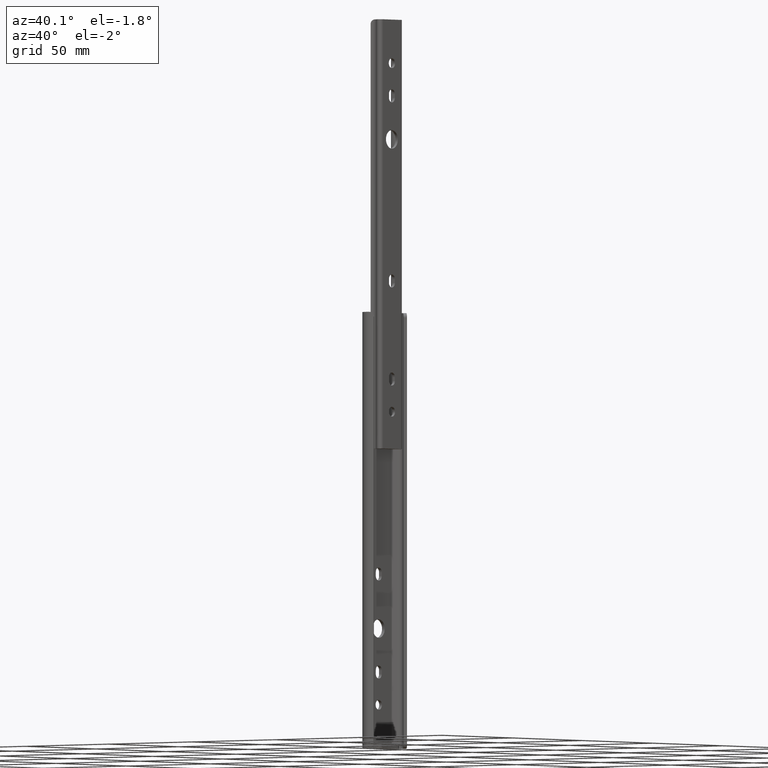
[diagram: clean part render]
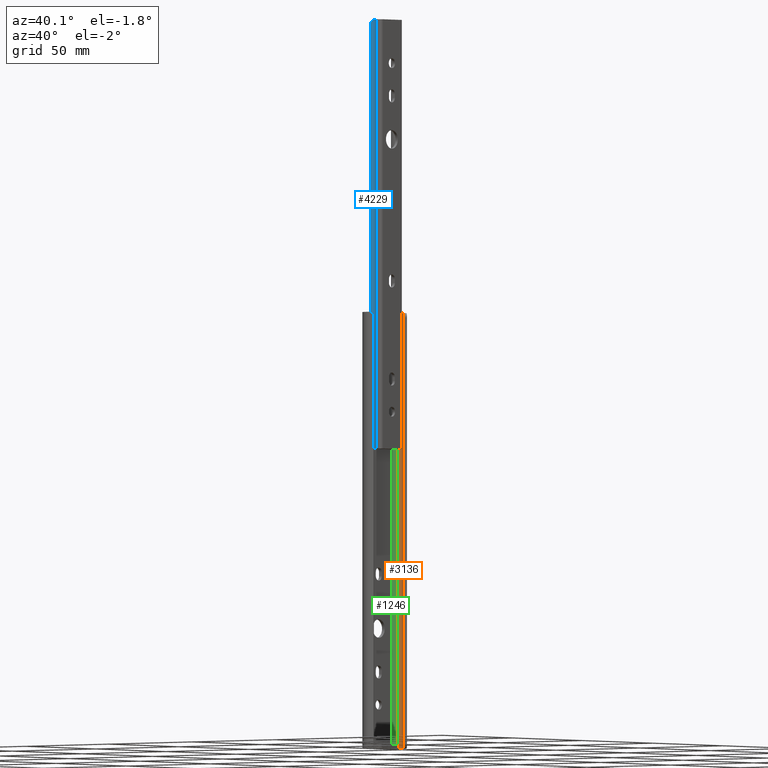
[diagram: same view with three faces highlighted in distinct colors, each labeled with its STEP entity id]
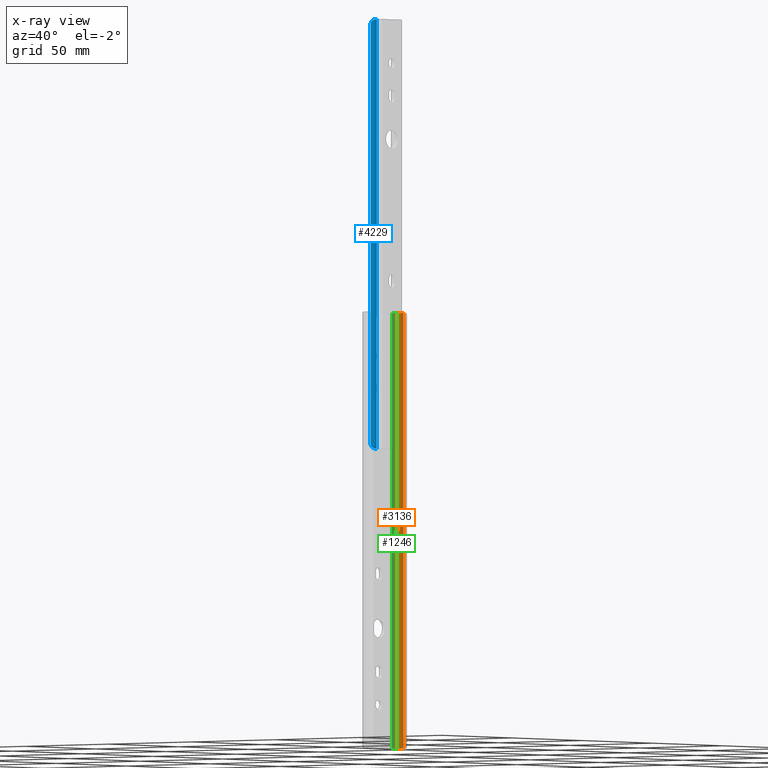
[diagram: x-ray of the same camera — body ghosted, the three highlighted faces saturated]
A machine part, auxiliary view with three faces highlighted in distinct colors.
The next image is the same camera in x-ray (body ghosted, the three faces saturated) — at least one of them is partly hidden behind the body in this view.
Their STEP definitions:

[orange] entity #3136 — the highlighted cylindrical surface (edge-blend (fillet) strip) has radius 2.38 mm, axis along (0, 0, 1).
#44 = CARTESIAN_POINT ( 'NONE',  ( 6.159554565290845218, 11.70952232855952957, 7.955333440612388785E-15 ) ) ;
#193 = CARTESIAN_POINT ( 'NONE',  ( 6.707828172244846954, 11.37344130486771654, -199.8263817872062020 ) ) ;
#339 = EDGE_CURVE ( 'NONE', #1954, #3659, #2154, .T. ) ;
#613 = ORIENTED_EDGE ( 'NONE', *, *, #3125, .T. ) ;
#697 = DIRECTION ( 'NONE',  ( 0.0000000000000000000, 0.0000000000000000000, 1.000000000000000000 ) ) ;
#735 = CARTESIAN_POINT ( 'NONE',  ( 6.914928520186535366, 11.17268289087915001, -0.3475630137417690113 ) ) ;
#944 = CIRCLE ( 'NONE', #3711, 2.380000000000003446 ) ;
#1015 = EDGE_CURVE ( 'NONE', #3629, #2826, #4083, .T. ) ;
#1031 = DIRECTION ( 'NONE',  ( -0.0000000000000000000, -0.0000000000000000000, -1.000000000000000000 ) ) ;
#1059 = LINE ( 'NONE', #2379, #3586 ) ;
#1108 = CARTESIAN_POINT ( 'NONE',  ( 6.974319507503963678, 11.10625038543432019, -199.5845069564100243 ) ) ;
#1134 = CARTESIAN_POINT ( 'NONE',  ( 5.946482975542397575, 11.77990335351425699, 0.0000000000000000000 ) ) ;
#1170 = CARTESIAN_POINT ( 'NONE',  ( 6.155113324817515164, 11.70268304060862263, -199.9919058725087950 ) ) ;
#1253 = EDGE_CURVE ( 'NONE', #2319, #3251, #1315, .T. ) ;
#1315 = B_SPLINE_CURVE_WITH_KNOTS ( 'NONE', 3,
 ( #2310, #735, #1327, #3633, #1978, #2067, #44, #3310 ),
 .UNSPECIFIED., .F., .F.,
 ( 4, 2, 2, 4 ),
 ( 0.0000000000000000000, 0.0003319397122535875516, 0.0006638794245071751032, 0.001327758849014350206 ),
 .UNSPECIFIED. ) ;
#1327 = CARTESIAN_POINT ( 'NONE',  ( 6.849112363084719490, 11.23882743567644127, -0.2876317299449960285 ) ) ;
#1350 = EDGE_CURVE ( 'NONE', #2826, #3251, #944, .T. ) ;
#1470 = CARTESIAN_POINT ( 'NONE',  ( 6.446040085907243089, 11.55048805000502909, -199.9316191511569514 ) ) ;
#1556 = CARTESIAN_POINT ( 'NONE',  ( 5.946482975542397575, 11.77990335351425699, -200.0000000000000000 ) ) ;
#1608 = CARTESIAN_POINT ( 'NONE',  ( 3.358592419840845889, 11.02785215579391043, 0.0000000000000000000 ) ) ;
#1635 = DIRECTION ( 'NONE',  ( -0.0000000000000000000, -0.0000000000000000000, -1.000000000000000000 ) ) ;
#1660 = CARTESIAN_POINT ( 'NONE',  ( 5.199999999999961098, 9.519999999999924967, -200.0000000000000000 ) ) ;
#1954 = VERTEX_POINT ( 'NONE', #1556 ) ;
#1978 = CARTESIAN_POINT ( 'NONE',  ( 6.621050867037928889, 11.43209788005492378, -0.1387759915512314923 ) ) ;
#2022 = DIRECTION ( 'NONE',  ( 1.000000000000000000, 0.0000000000000000000, 0.0000000000000000000 ) ) ;
#2067 = CARTESIAN_POINT ( 'NONE',  ( 6.359231725189411044, 11.60925759201545659, -0.03340115593023917917 ) ) ;
#2121 = ORIENTED_EDGE ( 'NONE', *, *, #1253, .T. ) ;
#2154 = B_SPLINE_CURVE_WITH_KNOTS ( 'NONE', 3,
 ( #3209, #4119, #1170, #3495, #1470, #193, #2804, #3541 ),
 .UNSPECIFIED., .F., .F.,
 ( 4, 2, 2, 4 ),
 ( 0.0000000000000000000, 0.0003315858646309653669, 0.0006631717292619307338, 0.001326343458523886838 ),
 .UNSPECIFIED. ) ;
#2310 = CARTESIAN_POINT ( 'NONE',  ( 6.974319507503963678, 11.10625038543432019, -0.4154930435900439645 ) ) ;
#2319 = VERTEX_POINT ( 'NONE', #2566 ) ;
#2379 = CARTESIAN_POINT ( 'NONE',  ( 6.974319507503963678, 11.10625038543432019, -200.0000000000000000 ) ) ;
#2476 = CIRCLE ( 'NONE', #3305, 2.380000000000003446 ) ;
#2566 = CARTESIAN_POINT ( 'NONE',  ( 6.974319507503963678, 11.10625038543432019, -0.4154930435900439645 ) ) ;
#2651 = CARTESIAN_POINT ( 'NONE',  ( 5.199999999999961098, 9.519999999999924967, -200.0000000000000000 ) ) ;
#2745 = AXIS2_PLACEMENT_3D ( 'NONE', #2651, #697, #4288 ) ;
#2762 = DIRECTION ( 'NONE',  ( 0.0000000000000000000, 0.0000000000000000000, 1.000000000000000000 ) ) ;
#2790 = VECTOR ( 'NONE', #2762, 1000.000000000000000 ) ;
#2804 = CARTESIAN_POINT ( 'NONE',  ( 6.855510967504663711, 11.23914511133290439, -199.7203974009524643 ) ) ;
#2826 = VERTEX_POINT ( 'NONE', #1608 ) ;
#2874 = ORIENTED_EDGE ( 'NONE', *, *, #2976, .T. ) ;
#2930 = ORIENTED_EDGE ( 'NONE', *, *, #1350, .F. ) ;
#2976 = EDGE_CURVE ( 'NONE', #3659, #2319, #1059, .T. ) ;
#2977 = CARTESIAN_POINT ( 'NONE',  ( 3.358592419840845889, 11.02785215579391043, -200.0000000000000000 ) ) ;
#3119 = ORIENTED_EDGE ( 'NONE', *, *, #1015, .F. ) ;
#3125 = EDGE_CURVE ( 'NONE', #3629, #1954, #2476, .T. ) ;
#3136 = ADVANCED_FACE ( 'NONE', ( #3284 ), #3307, .F. ) ;
#3209 = CARTESIAN_POINT ( 'NONE',  ( 5.946482975542397575, 11.77990335351425699, -200.0000000000000000 ) ) ;
#3246 = EDGE_LOOP ( 'NONE', ( #2874, #2121, #2930, #3119, #613, #4016 ) ) ;
#3251 = VERTEX_POINT ( 'NONE', #1134 ) ;
#3284 = FACE_OUTER_BOUND ( 'NONE', #3246, .T. ) ;
#3305 = AXIS2_PLACEMENT_3D ( 'NONE', #1660, #1635, #3935 ) ;
#3307 = CYLINDRICAL_SURFACE ( 'NONE', #2745, 2.380000000000003446 ) ;
#3310 = CARTESIAN_POINT ( 'NONE',  ( 5.946482975542397575, 11.77990335351425699, 0.0000000000000000000 ) ) ;
#3495 = CARTESIAN_POINT ( 'NONE',  ( 6.351149638006492459, 11.60595331441573386, -199.9579685989605764 ) ) ;
#3541 = CARTESIAN_POINT ( 'NONE',  ( 6.974319507503963678, 11.10625038543432019, -199.5845069564100243 ) ) ;
#3586 = VECTOR ( 'NONE', #3702, 1000.000000000000000 ) ;
#3629 = VERTEX_POINT ( 'NONE', #2977 ) ;
#3633 = CARTESIAN_POINT ( 'NONE',  ( 6.702731200202908468, 11.36817160449175645, -0.1834227767043500323 ) ) ;
#3659 = VERTEX_POINT ( 'NONE', #1108 ) ;
#3702 = DIRECTION ( 'NONE',  ( 0.0000000000000000000, 0.0000000000000000000, 1.000000000000000000 ) ) ;
#3711 = AXIS2_PLACEMENT_3D ( 'NONE', #3998, #1031, #2022 ) ;
#3935 = DIRECTION ( 'NONE',  ( 1.000000000000000000, 0.0000000000000000000, 0.0000000000000000000 ) ) ;
#3998 = CARTESIAN_POINT ( 'NONE',  ( 5.199999999999961098, 9.519999999999924967, 0.0000000000000000000 ) ) ;
#4016 = ORIENTED_EDGE ( 'NONE', *, *, #339, .T. ) ;
#4083 = LINE ( 'NONE', #4126, #2790 ) ;
#4119 = CARTESIAN_POINT ( 'NONE',  ( 6.052948930582743969, 11.74473591027430608, -200.0000000000000000 ) ) ;
#4126 = CARTESIAN_POINT ( 'NONE',  ( 3.358592419840845889, 11.02785215579391043, -200.0000000000000000 ) ) ;
#4288 = DIRECTION ( 'NONE',  ( 1.000000000000000000, 0.0000000000000000000, 0.0000000000000000000 ) ) ;

[blue] entity #4229 — the highlighted cylindrical surface (edge-blend (fillet) strip) has radius 2.38 mm, axis along (0, 0, 1).
#8 = CARTESIAN_POINT ( 'NONE',  ( -4.884615420219303061, -7.209535545151656954, -196.9124098983824069 ) ) ;
#31 = ORIENTED_EDGE ( 'NONE', *, *, #3248, .T. ) ;
#110 = AXIS2_PLACEMENT_3D ( 'NONE', #2208, #3855, #346 ) ;
#232 = CARTESIAN_POINT ( 'NONE',  ( -6.070176417109329314, -7.928886394135692406, -195.2684866842543556 ) ) ;
#272 = CARTESIAN_POINT ( 'NONE',  ( -5.242790267562034145, -7.320447486852587282, -196.7718854767491052 ) ) ;
#346 = DIRECTION ( 'NONE',  ( 1.000000000000000000, 0.0000000000000000000, 0.0000000000000000000 ) ) ;
#366 = CARTESIAN_POINT ( 'NONE',  ( -4.299999999999982947, -9.520000000000038654, -197.0000000000000000 ) ) ;
#607 = CARTESIAN_POINT ( 'NONE',  ( -6.079575828988866171, -7.939648814700101198, -197.0000000000000000 ) ) ;
#730 = VERTEX_POINT ( 'NONE', #2530 ) ;
#827 = CARTESIAN_POINT ( 'NONE',  ( -4.359540139069564724, -7.136905222651215297, -9.529120656610878815E-19 ) ) ;
#866 = CARTESIAN_POINT ( 'NONE',  ( -6.070034816704060532, -7.928723688413593429, -1.729687115820078613 ) ) ;
#932 = ORIENTED_EDGE ( 'NONE', *, *, #2845, .T. ) ;
#934 = CARTESIAN_POINT ( 'NONE',  ( -5.451193183394324571, -7.428116892260734794, -196.6240228362343032 ) ) ;
#977 = DIRECTION ( 'NONE',  ( 0.0000000000000000000, 0.0000000000000000000, 1.000000000000000000 ) ) ;
#1021 = VERTEX_POINT ( 'NONE', #3675 ) ;
#1041 = ORIENTED_EDGE ( 'NONE', *, *, #3107, .F. ) ;
#1076 = VECTOR ( 'NONE', #2455, 1000.000000000000000 ) ;
#1123 = CARTESIAN_POINT ( 'NONE',  ( -4.224383608589898031, -7.141201529899952938, 0.0000000000000000000 ) ) ;
#1130 = CARTESIAN_POINT ( 'NONE',  ( -2.762898461991288634, -7.702936747977264353, -197.0000000000000000 ) ) ;
#1143 = CARTESIAN_POINT ( 'NONE',  ( -5.878820472297716648, -7.737431379844815105, -0.9764683150438311365 ) ) ;
#1185 = CARTESIAN_POINT ( 'NONE',  ( -5.529995686275986699, -7.480168032535994271, -0.4671453871831064975 ) ) ;
#1220 = CIRCLE ( 'NONE', #1290, 2.380000000000082494 ) ;
#1290 = AXIS2_PLACEMENT_3D ( 'NONE', #366, #3022, #3715 ) ;
#1338 = CARTESIAN_POINT ( 'NONE',  ( -4.224383608589897143, -7.141201529899952938, -197.0000000000000000 ) ) ;
#1372 = FACE_OUTER_BOUND ( 'NONE', #2252, .T. ) ;
#1422 = CARTESIAN_POINT ( 'NONE',  ( -4.493238148771499851, -7.144180486839915467, -196.9903949779382231 ) ) ;
#1535 = CARTESIAN_POINT ( 'NONE',  ( -4.883280036585064821, -7.209202364549383013, -0.08718808365211548617 ) ) ;
#1561 = CARTESIAN_POINT ( 'NONE',  ( -6.004052279760137445, -7.857625651899378560, -195.6595121169605989 ) ) ;
#1641 = CIRCLE ( 'NONE', #110, 2.380000000000082494 ) ;
#1813 = CARTESIAN_POINT ( 'NONE',  ( -6.079575828988866171, -7.939648814700101198, -2.000000000000001776 ) ) ;
#1907 = CARTESIAN_POINT ( 'NONE',  ( -5.761671714405317779, -7.640163989261932187, -196.2426914328836460 ) ) ;
#1916 = EDGE_CURVE ( 'NONE', #3728, #730, #4123, .T. ) ;
#1958 = VERTEX_POINT ( 'NONE', #3556 ) ;
#2055 = CARTESIAN_POINT ( 'NONE',  ( -4.224383608589897143, -7.141201529899952938, -197.0000000000000000 ) ) ;
#2076 = CARTESIAN_POINT ( 'NONE',  ( -4.359913229171875848, -7.136893362997035695, -196.9999999999999716 ) ) ;
#2081 = CARTESIAN_POINT ( 'NONE',  ( -6.079575828988866171, -7.939648814700101198, -2.000000000000001776 ) ) ;
#2097 = CARTESIAN_POINT ( 'NONE',  ( -5.121956418324835170, -7.282950836602505085, -0.1805867225789704877 ) ) ;
#2143 = CARTESIAN_POINT ( 'NONE',  ( -6.032119266169279292, -7.887533645086116429, -1.467204447168341197 ) ) ;
#2208 = CARTESIAN_POINT ( 'NONE',  ( -4.299999999999982947, -9.520000000000038654, 0.0000000000000000000 ) ) ;
#2252 = EDGE_LOOP ( 'NONE', ( #1041, #2862, #3965, #932, #31, #2570 ) ) ;
#2313 = EDGE_CURVE ( 'NONE', #1021, #3727, #3589, .T. ) ;
#2373 = DIRECTION ( 'NONE',  ( 1.000000000000000000, 0.0000000000000000000, 0.0000000000000000000 ) ) ;
#2449 = CARTESIAN_POINT ( 'NONE',  ( -5.927591700766889460, -7.782701279540351180, -1.095204431251463051 ) ) ;
#2455 = DIRECTION ( 'NONE',  ( 0.0000000000000000000, 0.0000000000000000000, 1.000000000000000000 ) ) ;
#2469 = B_SPLINE_CURVE_WITH_KNOTS ( 'NONE', 3,
 ( #1123, #827, #3834, #2773, #1535, #2097, #4161, #3187, #1185, #2496, #4093, #1143, #2449, #2513, #2143, #866, #3471, #1813 ),
 .UNSPECIFIED., .F., .F.,
 ( 4, 2, 2, 2, 2, 2, 2, 2, 4 ),
 ( 8.134091890600635569E-21, 0.0004004089423415186115, 0.0008008178846830372229, 0.001201226827024555943, 0.001601635769366074446, 0.002002044711707593166, 0.002402453654049111886, 0.002802862596390629304, 0.003203271538732147591 ),
 .UNSPECIFIED. ) ;
#2496 = CARTESIAN_POINT ( 'NONE',  ( -5.691869406900535999, -7.586996275771831222, -0.6541241999248672556 ) ) ;
#2513 = CARTESIAN_POINT ( 'NONE',  ( -6.004005037948916268, -7.857583560247100252, -1.340398046521661390 ) ) ;
#2530 = CARTESIAN_POINT ( 'NONE',  ( -2.762898461991288634, -7.702936747977264353, 0.0000000000000000000 ) ) ;
#2570 = ORIENTED_EDGE ( 'NONE', *, *, #1916, .T. ) ;
#2701 = CARTESIAN_POINT ( 'NONE',  ( -4.299999999999982947, -9.520000000000038654, -197.0000000000000000 ) ) ;
#2773 = CARTESIAN_POINT ( 'NONE',  ( -4.754299119294839393, -7.180031935438118573, -0.05283876119218328810 ) ) ;
#2778 = B_SPLINE_CURVE_WITH_KNOTS ( 'NONE', 3,
 ( #2973, #3258, #232, #4296, #1561, #2888, #4214, #1907, #3233, #934, #272, #8, #3746, #1422, #2076, #2055 ),
 .UNSPECIFIED., .F., .F.,
 ( 4, 2, 2, 2, 2, 2, 2, 4 ),
 ( 0.0000000000000000000, 0.0004004257272553734788, 0.0008008514545107469577, 0.001201277181766120545, 0.001601702909021493915, 0.002402554363532181676, 0.002802980090787524688, 0.003203405818042867701 ),
 .UNSPECIFIED. ) ;
#2845 = EDGE_CURVE ( 'NONE', #1021, #2886, #2778, .T. ) ;
#2862 = ORIENTED_EDGE ( 'NONE', *, *, #3069, .T. ) ;
#2886 = VERTEX_POINT ( 'NONE', #1338 ) ;
#2888 = CARTESIAN_POINT ( 'NONE',  ( -5.927354108087768303, -7.782472661432761285, -195.9054960459133099 ) ) ;
#2973 = CARTESIAN_POINT ( 'NONE',  ( -6.079575828988866171, -7.939648814700101198, -195.0000000000000000 ) ) ;
#3022 = DIRECTION ( 'NONE',  ( -0.0000000000000000000, -0.0000000000000000000, -1.000000000000000000 ) ) ;
#3069 = EDGE_CURVE ( 'NONE', #1958, #3727, #2469, .T. ) ;
#3088 = VECTOR ( 'NONE', #977, 1000.000000000000000 ) ;
#3107 = EDGE_CURVE ( 'NONE', #1958, #730, #1641, .T. ) ;
#3187 = CARTESIAN_POINT ( 'NONE',  ( -5.439192551452232571, -7.427266383611995870, -0.3844935979401957193 ) ) ;
#3233 = CARTESIAN_POINT ( 'NONE',  ( -5.691393687889462427, -7.586705202048555030, -196.3463529354408763 ) ) ;
#3248 = EDGE_CURVE ( 'NONE', #2886, #3728, #1220, .T. ) ;
#3258 = CARTESIAN_POINT ( 'NONE',  ( -6.079575828988870612, -7.939648814700104751, -195.1354881734120852 ) ) ;
#3372 = CYLINDRICAL_SURFACE ( 'NONE', #4205, 2.380000000000082494 ) ;
#3406 = CARTESIAN_POINT ( 'NONE',  ( -2.762898461991288634, -7.702936747977264353, -197.0000000000000000 ) ) ;
#3471 = CARTESIAN_POINT ( 'NONE',  ( -6.079575828988872388, -7.939648814700110080, -1.864806171615904118 ) ) ;
#3556 = CARTESIAN_POINT ( 'NONE',  ( -4.224383608589898031, -7.141201529899952938, 0.0000000000000000000 ) ) ;
#3589 = LINE ( 'NONE', #607, #3088 ) ;
#3675 = CARTESIAN_POINT ( 'NONE',  ( -6.079575828988866171, -7.939648814700101198, -195.0000000000000000 ) ) ;
#3715 = DIRECTION ( 'NONE',  ( 1.000000000000000000, 0.0000000000000000000, 0.0000000000000000000 ) ) ;
#3727 = VERTEX_POINT ( 'NONE', #2081 ) ;
#3728 = VERTEX_POINT ( 'NONE', #3406 ) ;
#3746 = CARTESIAN_POINT ( 'NONE',  ( -4.755043368325182485, -7.180172041752618028, -196.9469950573057133 ) ) ;
#3834 = CARTESIAN_POINT ( 'NONE',  ( -4.492641994975962838, -7.144136515972931534, -0.009549222454075705427 ) ) ;
#3855 = DIRECTION ( 'NONE',  ( -0.0000000000000000000, -0.0000000000000000000, -1.000000000000000000 ) ) ;
#3965 = ORIENTED_EDGE ( 'NONE', *, *, #2313, .F. ) ;
#4019 = DIRECTION ( 'NONE',  ( 0.0000000000000000000, 0.0000000000000000000, 1.000000000000000000 ) ) ;
#4093 = CARTESIAN_POINT ( 'NONE',  ( -5.761367811935821592, -7.639939073448346996, -0.7568959000046961982 ) ) ;
#4123 = LINE ( 'NONE', #1130, #1076 ) ;
#4161 = CARTESIAN_POINT ( 'NONE',  ( -5.234782214899222907, -7.328316658558365226, -0.2406621409153909541 ) ) ;
#4205 = AXIS2_PLACEMENT_3D ( 'NONE', #2701, #4019, #2373 ) ;
#4214 = CARTESIAN_POINT ( 'NONE',  ( -5.879526674427611788, -7.738045142902929996, -196.0220546698210455 ) ) ;
#4229 = ADVANCED_FACE ( 'NONE', ( #1372 ), #3372, .F. ) ;
#4296 = CARTESIAN_POINT ( 'NONE',  ( -6.032670912147039211, -7.888124218987215386, -195.5298070837997670 ) ) ;

[green] entity #1246 — the highlighted planar face has unit normal (0.7071, -0.7071, 0).
#28 = VERTEX_POINT ( 'NONE', #3821 ) ;
#211 = DIRECTION ( 'NONE',  ( 0.7071067811865815456, 0.7071067811865134889, -0.0000000000000000000 ) ) ;
#291 = LINE ( 'NONE', #3620, #2795 ) ;
#310 = CARTESIAN_POINT ( 'NONE',  ( 1.599999999999966116, 9.269259735953198742, 0.0000000000000000000 ) ) ;
#395 = EDGE_CURVE ( 'NONE', #28, #489, #291, .T. ) ;
#489 = VERTEX_POINT ( 'NONE', #310 ) ;
#526 = VECTOR ( 'NONE', #211, 1000.000000000000000 ) ;
#746 = DIRECTION ( 'NONE',  ( 0.7071067811865134889, -0.7071067811865815456, 0.0000000000000000000 ) ) ;
#893 = CARTESIAN_POINT ( 'NONE',  ( 3.358592419840845889, 11.02785215579391043, 0.0000000000000000000 ) ) ;
#986 = DIRECTION ( 'NONE',  ( 0.7071067811865815456, 0.7071067811865134889, 0.0000000000000000000 ) ) ;
#1015 = EDGE_CURVE ( 'NONE', #3629, #2826, #4083, .T. ) ;
#1190 = AXIS2_PLACEMENT_3D ( 'NONE', #2329, #746, #986 ) ;
#1246 = ADVANCED_FACE ( 'NONE', ( #3718 ), #2372, .T. ) ;
#1294 = ORIENTED_EDGE ( 'NONE', *, *, #2577, .F. ) ;
#1608 = CARTESIAN_POINT ( 'NONE',  ( 3.358592419840845889, 11.02785215579391043, 0.0000000000000000000 ) ) ;
#1885 = LINE ( 'NONE', #893, #526 ) ;
#1946 = DIRECTION ( 'NONE',  ( 0.7071067811865815456, 0.7071067811865134889, -0.0000000000000000000 ) ) ;
#2329 = CARTESIAN_POINT ( 'NONE',  ( 3.358592419840845889, 11.02785215579391043, -200.0000000000000000 ) ) ;
#2372 = PLANE ( 'NONE',  #1190 ) ;
#2577 = EDGE_CURVE ( 'NONE', #489, #2826, #1885, .T. ) ;
#2622 = DIRECTION ( 'NONE',  ( 0.0000000000000000000, 0.0000000000000000000, 1.000000000000000000 ) ) ;
#2660 = ORIENTED_EDGE ( 'NONE', *, *, #1015, .T. ) ;
#2673 = EDGE_LOOP ( 'NONE', ( #1294, #3704, #3277, #2660 ) ) ;
#2753 = EDGE_CURVE ( 'NONE', #28, #3629, #4278, .T. ) ;
#2762 = DIRECTION ( 'NONE',  ( 0.0000000000000000000, 0.0000000000000000000, 1.000000000000000000 ) ) ;
#2790 = VECTOR ( 'NONE', #2762, 1000.000000000000000 ) ;
#2795 = VECTOR ( 'NONE', #2622, 1000.000000000000000 ) ;
#2826 = VERTEX_POINT ( 'NONE', #1608 ) ;
#2911 = CARTESIAN_POINT ( 'NONE',  ( 3.358592419840845889, 11.02785215579391043, -200.0000000000000000 ) ) ;
#2977 = CARTESIAN_POINT ( 'NONE',  ( 3.358592419840845889, 11.02785215579391043, -200.0000000000000000 ) ) ;
#3277 = ORIENTED_EDGE ( 'NONE', *, *, #2753, .T. ) ;
#3510 = VECTOR ( 'NONE', #1946, 1000.000000000000000 ) ;
#3620 = CARTESIAN_POINT ( 'NONE',  ( 1.599999999999966116, 9.269259735953198742, -200.0000000000000000 ) ) ;
#3629 = VERTEX_POINT ( 'NONE', #2977 ) ;
#3704 = ORIENTED_EDGE ( 'NONE', *, *, #395, .F. ) ;
#3718 = FACE_OUTER_BOUND ( 'NONE', #2673, .T. ) ;
#3821 = CARTESIAN_POINT ( 'NONE',  ( 1.599999999999966116, 9.269259735953198742, -200.0000000000000000 ) ) ;
#4083 = LINE ( 'NONE', #4126, #2790 ) ;
#4126 = CARTESIAN_POINT ( 'NONE',  ( 3.358592419840845889, 11.02785215579391043, -200.0000000000000000 ) ) ;
#4278 = LINE ( 'NONE', #2911, #3510 ) ;